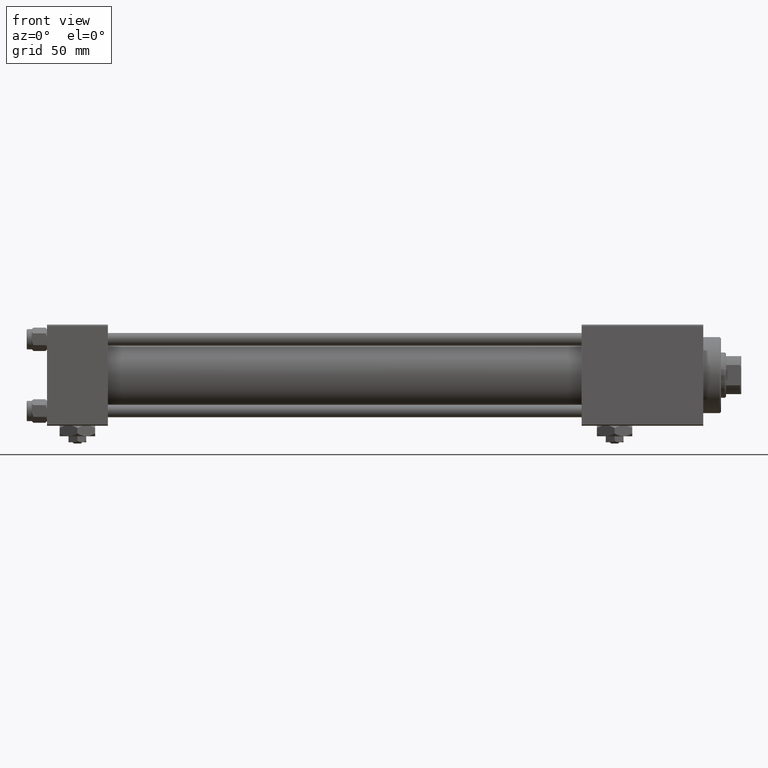
[diagram: clean part render]
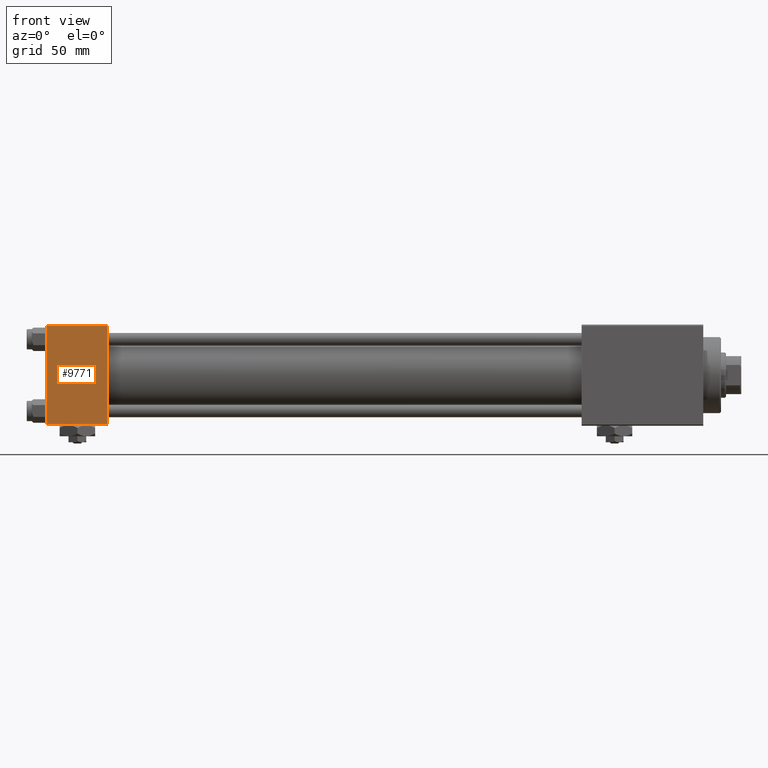
[diagram: same view with one face highlighted and labeled with its STEP entity id]
A machine part, front view. The second image highlights one B-rep face of the part: STEP entity #9771.
In plain terms, the highlighted planar face has unit normal (0, 1, 0).
Its self-contained STEP definition (entity closure, byte-faithful):
#1688 = CARTESIAN_POINT ( 'NONE',  ( 24.00000000000000000, -20.00000000000000355, 19.49999999999998224 ) ) ;
#1802 = ORIENTED_EDGE ( 'NONE', *, *, #37019, .T. ) ;
#5380 = DIRECTION ( 'NONE',  ( -1.000000000000000000, 0.000000000000000000, 0.000000000000000000 ) ) ;
#6999 = DIRECTION ( 'NONE',  ( 1.000000000000000000, 0.000000000000000000, 0.000000000000000000 ) ) ;
#9771 = ADVANCED_FACE ( 'NONE', ( #48532 ), #36418, .F. ) ;
#9926 = AXIS2_PLACEMENT_3D ( 'NONE', #36677, #24315, #31419 ) ;
#10225 = VERTEX_POINT ( 'NONE', #21353 ) ;
#12357 = VECTOR ( 'NONE', #26630, 1000.000000000000000 ) ;
#12418 = CARTESIAN_POINT ( 'NONE',  ( 0.000000000000000000, -20.00000000000000355, 19.49999999999998224 ) ) ;
#13830 = ORIENTED_EDGE ( 'NONE', *, *, #22342, .T. ) ;
#16765 = EDGE_CURVE ( 'NONE', #27804, #10225, #34600, .T. ) ;
#20922 = LINE ( 'NONE', #1688, #44210 ) ;
#21353 = CARTESIAN_POINT ( 'NONE',  ( 24.00000000000000000, -20.00000000000000000, -19.49999999999999645 ) ) ;
#22342 = EDGE_CURVE ( 'NONE', #31885, #10225, #43082, .T. ) ;
#23578 = CARTESIAN_POINT ( 'NONE',  ( 24.00000000000000000, -20.00000000000000000, -19.49999999999999645 ) ) ;
#24315 = DIRECTION ( 'NONE',  ( -0.000000000000000000, 1.000000000000000000, 8.673617379884036705E-17 ) ) ;
#26630 = DIRECTION ( 'NONE',  ( 0.000000000000000000, 8.673617379884036705E-17, -1.000000000000000000 ) ) ;
#27804 = VERTEX_POINT ( 'NONE', #41006 ) ;
#29060 = ORIENTED_EDGE ( 'NONE', *, *, #16765, .F. ) ;
#30884 = DIRECTION ( 'NONE',  ( 0.000000000000000000, 8.673617379884036705E-17, -1.000000000000000000 ) ) ;
#31419 = DIRECTION ( 'NONE',  ( 0.000000000000000000, -8.673617379884036705E-17, 1.000000000000000000 ) ) ;
#31685 = ORIENTED_EDGE ( 'NONE', *, *, #39526, .T. ) ;
#31885 = VERTEX_POINT ( 'NONE', #46058 ) ;
#34536 = LINE ( 'NONE', #45337, #12357 ) ;
#34600 = LINE ( 'NONE', #38295, #37056 ) ;
#36418 = PLANE ( 'NONE',  #9926 ) ;
#36677 = CARTESIAN_POINT ( 'NONE',  ( 24.00000000000000000, -20.00000000000000355, 19.99999999999998934 ) ) ;
#37019 = EDGE_CURVE ( 'NONE', #27804, #49543, #20922, .T. ) ;
#37056 = VECTOR ( 'NONE', #30884, 1000.000000000000000 ) ;
#38295 = CARTESIAN_POINT ( 'NONE',  ( 24.00000000000000000, -20.00000000000000355, 19.99999999999998934 ) ) ;
#39526 = EDGE_CURVE ( 'NONE', #49543, #31885, #34536, .T. ) ;
#41006 = CARTESIAN_POINT ( 'NONE',  ( 24.00000000000000000, -20.00000000000000355, 19.49999999999998224 ) ) ;
#43082 = LINE ( 'NONE', #23578, #43846 ) ;
#43846 = VECTOR ( 'NONE', #6999, 1000.000000000000000 ) ;
#44210 = VECTOR ( 'NONE', #5380, 1000.000000000000000 ) ;
#45337 = CARTESIAN_POINT ( 'NONE',  ( 0.000000000000000000, -20.00000000000000355, 19.99999999999998934 ) ) ;
#46058 = CARTESIAN_POINT ( 'NONE',  ( 0.000000000000000000, -20.00000000000000000, -19.49999999999999645 ) ) ;
#48532 = FACE_OUTER_BOUND ( 'NONE', #49823, .T. ) ;
#49543 = VERTEX_POINT ( 'NONE', #12418 ) ;
#49823 = EDGE_LOOP ( 'NONE', ( #31685, #13830, #29060, #1802 ) ) ;